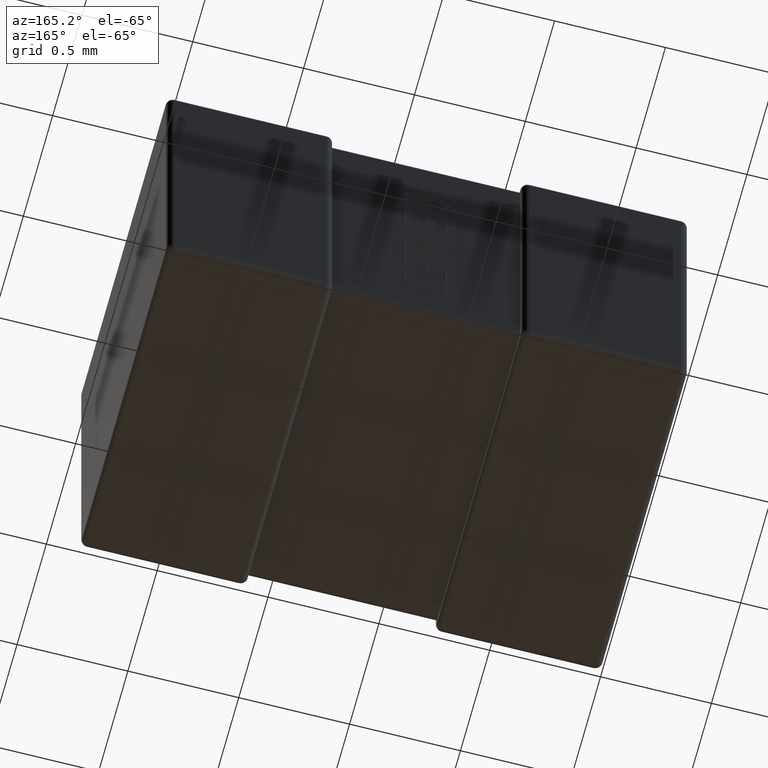
[diagram: clean part render]
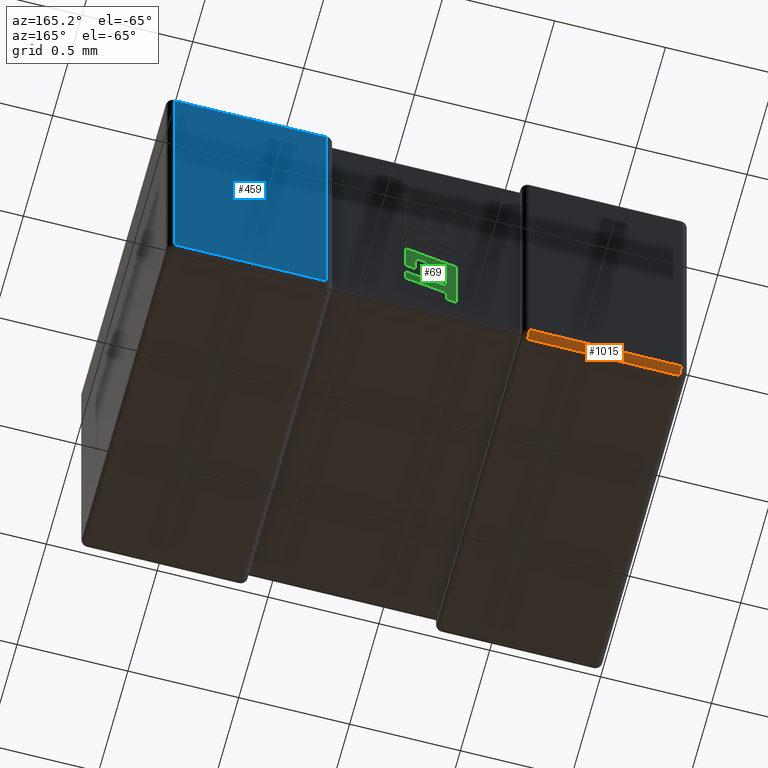
[diagram: same view with three faces highlighted in distinct colors, each labeled with its STEP entity id]
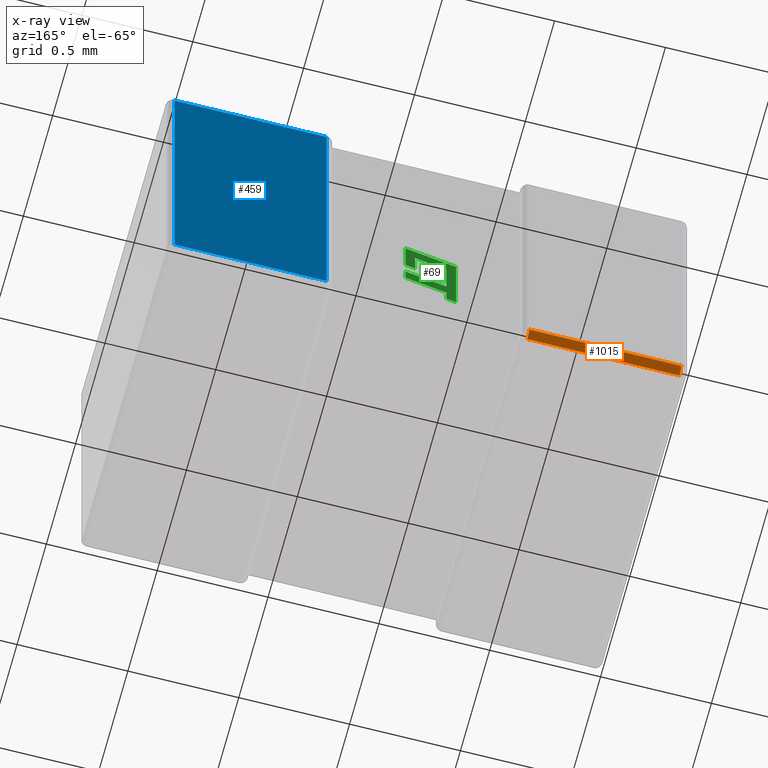
[diagram: x-ray of the same camera — body ghosted, the three highlighted faces saturated]
A machine part, auxiliary view with three faces highlighted in distinct colors.
The next image is the same camera in x-ray (body ghosted, the three faces saturated) — at least one of them is partly hidden behind the body in this view.
Their STEP definitions:

[orange] entity #1015 — the highlighted cylindrical surface (edge-blend (fillet) strip) has radius 0.0322 mm, axis along (-1, 0, 0).
#7 = EDGE_LOOP ( 'NONE', ( #2310, #2901, #1964, #3157 ) ) ;
#79 = DIRECTION ( 'NONE',  ( -1.000000000000000000, 0.000000000000000000, 0.000000000000000000 ) ) ;
#136 = CARTESIAN_POINT ( 'NONE',  ( 0.03223999999999978272, 1.467759999999999954, -1.550000000000000044 ) ) ;
#346 = EDGE_CURVE ( 'NONE', #2840, #2789, #3539, .T. ) ;
#517 = AXIS2_PLACEMENT_3D ( 'NONE', #1414, #4678, #2862 ) ;
#530 = CARTESIAN_POINT ( 'NONE',  ( 0.7177600000000000646, 1.467759999999999954, -1.517759999999999998 ) ) ;
#558 = FACE_OUTER_BOUND ( 'NONE', #7, .T. ) ;
#579 = EDGE_CURVE ( 'NONE', #3150, #3820, #1791, .T. ) ;
#605 = EDGE_CURVE ( 'NONE', #3820, #2789, #1310, .T. ) ;
#737 = VECTOR ( 'NONE', #79, 1000.000000000000000 ) ;
#834 = CARTESIAN_POINT ( 'NONE',  ( 2.350000000000000089, 1.500000000000000000, -1.517759999999999998 ) ) ;
#1015 = ADVANCED_FACE ( 'NONE', ( #558 ), #2079, .T. ) ;
#1213 = CARTESIAN_POINT ( 'NONE',  ( 0.7177600000000000646, 1.467759999999999954, -1.550000000000000044 ) ) ;
#1310 = LINE ( 'NONE', #834, #737 ) ;
#1334 = DIRECTION ( 'NONE',  ( 1.000000000000000000, -3.362909964285063307E-15, 0.000000000000000000 ) ) ;
#1414 = CARTESIAN_POINT ( 'NONE',  ( 0.03223999999999978272, 1.467759999999999954, -1.517759999999999998 ) ) ;
#1533 = EDGE_CURVE ( 'NONE', #2840, #3150, #3797, .T. ) ;
#1791 = CIRCLE ( 'NONE', #2038, 0.03224000000000000477 ) ;
#1964 = ORIENTED_EDGE ( 'NONE', *, *, #579, .F. ) ;
#1974 = DIRECTION ( 'NONE',  ( 3.362909964285062912E-15, 1.000000000000000000, 0.000000000000000000 ) ) ;
#2038 = AXIS2_PLACEMENT_3D ( 'NONE', #530, #1334, #1974 ) ;
#2079 = CYLINDRICAL_SURFACE ( 'NONE', #3307, 0.03224000000000000477 ) ;
#2271 = CARTESIAN_POINT ( 'NONE',  ( 0.03223999999999978272, 1.500000000000000000, -1.517759999999999998 ) ) ;
#2310 = ORIENTED_EDGE ( 'NONE', *, *, #346, .T. ) ;
#2645 = VECTOR ( 'NONE', #4404, 1000.000000000000000 ) ;
#2789 = VERTEX_POINT ( 'NONE', #2271 ) ;
#2840 = VERTEX_POINT ( 'NONE', #136 ) ;
#2862 = DIRECTION ( 'NONE',  ( 0.000000000000000000, 0.000000000000000000, 1.000000000000000000 ) ) ;
#2901 = ORIENTED_EDGE ( 'NONE', *, *, #605, .F. ) ;
#3150 = VERTEX_POINT ( 'NONE', #1213 ) ;
#3157 = ORIENTED_EDGE ( 'NONE', *, *, #1533, .F. ) ;
#3232 = DIRECTION ( 'NONE',  ( -1.000000000000000000, 0.000000000000000000, 0.000000000000000000 ) ) ;
#3307 = AXIS2_PLACEMENT_3D ( 'NONE', #3936, #3232, #3537 ) ;
#3510 = CARTESIAN_POINT ( 'NONE',  ( 0.7177600000000001756, 1.500000000000000000, -1.517759999999999998 ) ) ;
#3537 = DIRECTION ( 'NONE',  ( 0.000000000000000000, 0.000000000000000000, 1.000000000000000000 ) ) ;
#3539 = CIRCLE ( 'NONE', #517, 0.03224000000000000477 ) ;
#3797 = LINE ( 'NONE', #4511, #2645 ) ;
#3820 = VERTEX_POINT ( 'NONE', #3510 ) ;
#3936 = CARTESIAN_POINT ( 'NONE',  ( 2.350000000000000089, 1.467759999999999954, -1.517759999999999998 ) ) ;
#4404 = DIRECTION ( 'NONE',  ( 1.000000000000000000, -0.000000000000000000, -0.000000000000000000 ) ) ;
#4511 = CARTESIAN_POINT ( 'NONE',  ( 2.350000000000000089, 1.467759999999999954, -1.550000000000000044 ) ) ;
#4678 = DIRECTION ( 'NONE',  ( 1.000000000000000000, -0.000000000000000000, -0.000000000000000000 ) ) ;

[blue] entity #459 — the highlighted planar face has unit normal (0, -1, 0).
#19 = VECTOR ( 'NONE', #3088, 1000.000000000000000 ) ;
#134 = PLANE ( 'NONE',  #446 ) ;
#312 = ORIENTED_EDGE ( 'NONE', *, *, #4600, .T. ) ;
#446 = AXIS2_PLACEMENT_3D ( 'NONE', #3001, #795, #4006 ) ;
#456 = ORIENTED_EDGE ( 'NONE', *, *, #903, .T. ) ;
#459 = ADVANCED_FACE ( 'NONE', ( #2582 ), #134, .F. ) ;
#651 = CARTESIAN_POINT ( 'NONE',  ( 1.632240000000000135, 1.500000000000000000, -1.517759999999999998 ) ) ;
#795 = DIRECTION ( 'NONE',  ( 0.000000000000000000, -1.000000000000000000, 0.000000000000000000 ) ) ;
#894 = VECTOR ( 'NONE', #1007, 1000.000000000000000 ) ;
#903 = EDGE_CURVE ( 'NONE', #4239, #1529, #4555, .T. ) ;
#939 = ORIENTED_EDGE ( 'NONE', *, *, #2927, .T. ) ;
#1007 = DIRECTION ( 'NONE',  ( -0.000000000000000000, -0.000000000000000000, -1.000000000000000000 ) ) ;
#1075 = VERTEX_POINT ( 'NONE', #651 ) ;
#1130 = LINE ( 'NONE', #3690, #1422 ) ;
#1422 = VECTOR ( 'NONE', #2591, 1000.000000000000000 ) ;
#1529 = VERTEX_POINT ( 'NONE', #2972 ) ;
#1688 = DIRECTION ( 'NONE',  ( 1.000000000000000000, -0.000000000000000000, -0.000000000000000000 ) ) ;
#1741 = VECTOR ( 'NONE', #1688, 1000.000000000000000 ) ;
#1976 = CARTESIAN_POINT ( 'NONE',  ( 1.632240000000000135, 1.500000000000000000, -0.03223999999999999783 ) ) ;
#2027 = EDGE_CURVE ( 'NONE', #2819, #4239, #3087, .T. ) ;
#2366 = LINE ( 'NONE', #3533, #19 ) ;
#2582 = FACE_OUTER_BOUND ( 'NONE', #4169, .T. ) ;
#2591 = DIRECTION ( 'NONE',  ( -1.000000000000000000, 0.000000000000000000, 0.000000000000000000 ) ) ;
#2819 = VERTEX_POINT ( 'NONE', #1976 ) ;
#2854 = CARTESIAN_POINT ( 'NONE',  ( 2.317760000000000264, 1.500000000000000000, -0.03223999999999999783 ) ) ;
#2927 = EDGE_CURVE ( 'NONE', #1075, #2819, #2366, .T. ) ;
#2972 = CARTESIAN_POINT ( 'NONE',  ( 2.317760000000000264, 1.500000000000000000, -1.517759999999999998 ) ) ;
#3001 = CARTESIAN_POINT ( 'NONE',  ( 2.350000000000000089, 1.500000000000000000, 0.000000000000000000 ) ) ;
#3087 = LINE ( 'NONE', #4551, #1741 ) ;
#3088 = DIRECTION ( 'NONE',  ( -0.000000000000000000, 0.000000000000000000, 1.000000000000000000 ) ) ;
#3190 = ORIENTED_EDGE ( 'NONE', *, *, #2027, .T. ) ;
#3533 = CARTESIAN_POINT ( 'NONE',  ( 1.632240000000000135, 1.500000000000000000, 0.000000000000000000 ) ) ;
#3690 = CARTESIAN_POINT ( 'NONE',  ( 2.350000000000000089, 1.500000000000000000, -1.517759999999999998 ) ) ;
#4006 = DIRECTION ( 'NONE',  ( 0.000000000000000000, -0.000000000000000000, -1.000000000000000000 ) ) ;
#4166 = CARTESIAN_POINT ( 'NONE',  ( 2.317760000000000264, 1.500000000000000000, 0.000000000000000000 ) ) ;
#4169 = EDGE_LOOP ( 'NONE', ( #3190, #456, #312, #939 ) ) ;
#4239 = VERTEX_POINT ( 'NONE', #2854 ) ;
#4551 = CARTESIAN_POINT ( 'NONE',  ( 2.350000000000000089, 1.500000000000000000, -0.03223999999999999783 ) ) ;
#4555 = LINE ( 'NONE', #4166, #894 ) ;
#4600 = EDGE_CURVE ( 'NONE', #1529, #1075, #1130, .T. ) ;

[green] entity #69 — the highlighted planar face has unit normal (0, 1, 0).
#69 = ADVANCED_FACE ( 'NONE', ( #314 ), #334, .T. ) ;
#111 = CARTESIAN_POINT ( 'NONE',  ( 1.169014311898541880, 1.472760000000000069, -1.019298461156342261 ) ) ;
#121 = VERTEX_POINT ( 'NONE', #3006 ) ;
#147 = LINE ( 'NONE', #565, #2205 ) ;
#181 = DIRECTION ( 'NONE',  ( 7.938847109757214563E-05, 0.000000000000000000, -0.9999999968487351953 ) ) ;
#190 = ORIENTED_EDGE ( 'NONE', *, *, #3195, .T. ) ;
#202 = VECTOR ( 'NONE', #1547, 1000.000000000000000 ) ;
#215 = VECTOR ( 'NONE', #800, 1000.000000000000000 ) ;
#260 = CARTESIAN_POINT ( 'NONE',  ( 1.169014311898541880, 1.472760000000000069, -1.019298461156342261 ) ) ;
#270 = VERTEX_POINT ( 'NONE', #1368 ) ;
#272 = DIRECTION ( 'NONE',  ( 0.000000000000000000, 0.000000000000000000, -1.000000000000000000 ) ) ;
#293 = VECTOR ( 'NONE', #3678, 1000.000000000000000 ) ;
#314 = FACE_OUTER_BOUND ( 'NONE', #2267, .T. ) ;
#334 = PLANE ( 'NONE',  #2711 ) ;
#363 = DIRECTION ( 'NONE',  ( 0.000000000000000000, 0.000000000000000000, -1.000000000000000000 ) ) ;
#410 = LINE ( 'NONE', #2553, #4623 ) ;
#427 = DIRECTION ( 'NONE',  ( -0.9610992334305258344, 0.000000000000000000, -0.2762033010288897361 ) ) ;
#481 = CARTESIAN_POINT ( 'NONE',  ( 1.269000000000003681, 1.472760000000000069, -1.164480368551513267 ) ) ;
#492 = CARTESIAN_POINT ( 'NONE',  ( 1.225639842472818541, 1.472760000000000069, -1.003132803372474902 ) ) ;
#549 = EDGE_CURVE ( 'NONE', #2419, #4050, #2021, .T. ) ;
#565 = CARTESIAN_POINT ( 'NONE',  ( 1.085129846205633797, 1.472760000000000069, -1.217345090345971270 ) ) ;
#611 = CARTESIAN_POINT ( 'NONE',  ( 1.084807669329675317, 1.472760000000000069, -1.148070826337084016 ) ) ;
#661 = VERTEX_POINT ( 'NONE', #3015 ) ;
#765 = VERTEX_POINT ( 'NONE', #3713 ) ;
#778 = ORIENTED_EDGE ( 'NONE', *, *, #1302, .T. ) ;
#781 = EDGE_CURVE ( 'NONE', #2246, #976, #897, .T. ) ;
#800 = DIRECTION ( 'NONE',  ( -0.9620200793798762140, 0.000000000000000000, -0.2729786930695082825 ) ) ;
#880 = EDGE_CURVE ( 'NONE', #1004, #2593, #2767, .T. ) ;
#897 = LINE ( 'NONE', #3727, #215 ) ;
#937 = DIRECTION ( 'NONE',  ( -0.9615323037684311291, 0.000000000000000000, -0.2746918797667186607 ) ) ;
#945 = DIRECTION ( 'NONE',  ( -0.9610876102172832836, 0.000000000000000000, -0.2762437428917279836 ) ) ;
#976 = VERTEX_POINT ( 'NONE', #4217 ) ;
#1004 = VERTEX_POINT ( 'NONE', #1713 ) ;
#1057 = VECTOR ( 'NONE', #3558, 1000.000000000000000 ) ;
#1121 = LINE ( 'NONE', #1833, #4234 ) ;
#1142 = VECTOR ( 'NONE', #1162, 1000.000000000000114 ) ;
#1162 = DIRECTION ( 'NONE',  ( -0.9601763114346048011, 0.000000000000000000, -0.2793947940814874298 ) ) ;
#1186 = VERTEX_POINT ( 'NONE', #1498 ) ;
#1208 = EDGE_CURVE ( 'NONE', #4050, #2004, #3743, .T. ) ;
#1219 = CARTESIAN_POINT ( 'NONE',  ( 1.126897133544126905, 1.472760000000000069, -1.129104654719558010 ) ) ;
#1284 = ORIENTED_EDGE ( 'NONE', *, *, #781, .T. ) ;
#1285 = LINE ( 'NONE', #1633, #1785 ) ;
#1302 = EDGE_CURVE ( 'NONE', #4484, #2246, #2337, .T. ) ;
#1318 = CARTESIAN_POINT ( 'NONE',  ( 1.269000000000003681, 1.472760000000000069, -1.229391041238737214 ) ) ;
#1368 = CARTESIAN_POINT ( 'NONE',  ( 1.085134799085710311, 1.472760000000000069, -1.344628413949363610 ) ) ;
#1382 = ORIENTED_EDGE ( 'NONE', *, *, #2146, .T. ) ;
#1430 = VECTOR ( 'NONE', #937, 1000.000000000000227 ) ;
#1450 = CARTESIAN_POINT ( 'NONE',  ( 1.041132956314514857, 1.472760000000000069, -1.357273782712564048 ) ) ;
#1451 = DIRECTION ( 'NONE',  ( 0.9610348236706638403, 0.000000000000000000, 0.2764273280489756290 ) ) ;
#1452 = ORIENTED_EDGE ( 'NONE', *, *, #1208, .T. ) ;
#1498 = CARTESIAN_POINT ( 'NONE',  ( 1.225639842472818541, 1.472760000000000069, -1.003132803372474902 ) ) ;
#1538 = DIRECTION ( 'NONE',  ( -0.9615825319869173438, 0.000000000000000000, -0.2745159998572558879 ) ) ;
#1547 = DIRECTION ( 'NONE',  ( 0.000000000000000000, 0.000000000000000000, -1.000000000000000000 ) ) ;
#1605 = DIRECTION ( 'NONE',  ( 0.9610664548998939516, 0.000000000000000000, 0.2763173343569854667 ) ) ;
#1627 = CARTESIAN_POINT ( 'NONE',  ( 1.084807669329675317, 1.472760000000000069, -1.148070826337084016 ) ) ;
#1633 = CARTESIAN_POINT ( 'NONE',  ( 1.085129846206199566, 1.472760000000000069, -1.282240520256154648 ) ) ;
#1654 = DIRECTION ( 'NONE',  ( 0.004650693823668812857, 0.000000000000000000, -0.9999891854650021505 ) ) ;
#1692 = DIRECTION ( 'NONE',  ( 0.002813301676014988168, 0.000000000000000000, -0.9999960426590095430 ) ) ;
#1713 = CARTESIAN_POINT ( 'NONE',  ( 1.084513899447020258, 1.472760000000000069, -1.043649490149650694 ) ) ;
#1719 = ORIENTED_EDGE ( 'NONE', *, *, #2699, .T. ) ;
#1767 = ORIENTED_EDGE ( 'NONE', *, *, #2731, .T. ) ;
#1771 = DIRECTION ( 'NONE',  ( 0.000000000000000000, 1.000000000000000000, 0.000000000000000000 ) ) ;
#1777 = VECTOR ( 'NONE', #945, 1000.000000000000227 ) ;
#1785 = VECTOR ( 'NONE', #181, 1000.000000000000114 ) ;
#1833 = CARTESIAN_POINT ( 'NONE',  ( 1.225639842472818541, 1.472760000000000069, -1.110396224602928417 ) ) ;
#1846 = CARTESIAN_POINT ( 'NONE',  ( 1.269000000000003681, 1.472760000000000069, -1.164480368551513267 ) ) ;
#1870 = VECTOR ( 'NONE', #272, 1000.000000000000000 ) ;
#2004 = VERTEX_POINT ( 'NONE', #2435 ) ;
#2021 = LINE ( 'NONE', #2741, #1430 ) ;
#2060 = VECTOR ( 'NONE', #363, 1000.000000000000000 ) ;
#2089 = CARTESIAN_POINT ( 'NONE',  ( -0.2601923135456278291, 1.472759999999999625, 0.003507179810070972133 ) ) ;
#2146 = EDGE_CURVE ( 'NONE', #4384, #661, #3252, .T. ) ;
#2205 = VECTOR ( 'NONE', #1605, 1000.000000000000114 ) ;
#2213 = CARTESIAN_POINT ( 'NONE',  ( 1.041132956314514857, 1.472760000000000069, -1.357273782712564048 ) ) ;
#2219 = CARTESIAN_POINT ( 'NONE',  ( 1.126897133544126905, 1.472760000000000069, -1.129104654719558010 ) ) ;
#2246 = VERTEX_POINT ( 'NONE', #2855 ) ;
#2267 = EDGE_LOOP ( 'NONE', ( #3517, #1719, #2448, #3561, #3719, #3309, #3065, #1382, #3220, #778, #1284, #1767, #2479, #4568, #3676, #1452, #190 ) ) ;
#2323 = EDGE_CURVE ( 'NONE', #270, #4384, #3390, .T. ) ;
#2337 = LINE ( 'NONE', #2363, #1870 ) ;
#2363 = CARTESIAN_POINT ( 'NONE',  ( 1.269000000000003681, 1.472760000000000069, -0.9259322953616510032 ) ) ;
#2419 = VERTEX_POINT ( 'NONE', #3877 ) ;
#2420 = LINE ( 'NONE', #1318, #1777 ) ;
#2435 = CARTESIAN_POINT ( 'NONE',  ( 1.126897133544126905, 1.472760000000000069, -1.031316697909258950 ) ) ;
#2438 = VECTOR ( 'NONE', #1654, 1000.000000000000114 ) ;
#2448 = ORIENTED_EDGE ( 'NONE', *, *, #2641, .T. ) ;
#2479 = ORIENTED_EDGE ( 'NONE', *, *, #2530, .T. ) ;
#2530 = EDGE_CURVE ( 'NONE', #1186, #2760, #3645, .T. ) ;
#2553 = CARTESIAN_POINT ( 'NONE',  ( 1.041132956314514857, 1.472760000000000069, -0.9914748506207977652 ) ) ;
#2593 = VERTEX_POINT ( 'NONE', #611 ) ;
#2641 = EDGE_CURVE ( 'NONE', #3010, #2795, #147, .T. ) ;
#2699 = EDGE_CURVE ( 'NONE', #2593, #3010, #3428, .T. ) ;
#2711 = AXIS2_PLACEMENT_3D ( 'NONE', #2089, #1771, #4661 ) ;
#2731 = EDGE_CURVE ( 'NONE', #976, #1186, #1121, .T. ) ;
#2741 = CARTESIAN_POINT ( 'NONE',  ( 1.169014311898541880, 1.472760000000000069, -1.117072560896706479 ) ) ;
#2760 = VERTEX_POINT ( 'NONE', #260 ) ;
#2767 = LINE ( 'NONE', #2791, #2788 ) ;
#2788 = VECTOR ( 'NONE', #1692, 1000.000000000000114 ) ;
#2791 = CARTESIAN_POINT ( 'NONE',  ( 1.084513899447020258, 1.472760000000000069, -1.043649490149650694 ) ) ;
#2795 = VERTEX_POINT ( 'NONE', #481 ) ;
#2855 = CARTESIAN_POINT ( 'NONE',  ( 1.269000000000003681, 1.472760000000000069, -1.098092532209430150 ) ) ;
#2949 = CARTESIAN_POINT ( 'NONE',  ( 1.126897133544126905, 1.472760000000000069, -1.031316697909258950 ) ) ;
#2988 = EDGE_CURVE ( 'NONE', #2795, #765, #4336, .T. ) ;
#3006 = CARTESIAN_POINT ( 'NONE',  ( 1.085129846206199566, 1.472760000000000069, -1.282240520256154648 ) ) ;
#3010 = VERTEX_POINT ( 'NONE', #3652 ) ;
#3015 = CARTESIAN_POINT ( 'NONE',  ( 1.041132956314514857, 1.472760000000000069, -0.9914748506207977652 ) ) ;
#3043 = LINE ( 'NONE', #2949, #1142 ) ;
#3046 = EDGE_CURVE ( 'NONE', #661, #4484, #410, .T. ) ;
#3065 = ORIENTED_EDGE ( 'NONE', *, *, #2323, .T. ) ;
#3179 = CARTESIAN_POINT ( 'NONE',  ( 1.269000000000003681, 1.472760000000000069, -0.9259322953616510032 ) ) ;
#3195 = EDGE_CURVE ( 'NONE', #2004, #1004, #3043, .T. ) ;
#3220 = ORIENTED_EDGE ( 'NONE', *, *, #3046, .T. ) ;
#3252 = LINE ( 'NONE', #1450, #1057 ) ;
#3309 = ORIENTED_EDGE ( 'NONE', *, *, #4177, .T. ) ;
#3390 = LINE ( 'NONE', #3671, #3926 ) ;
#3428 = LINE ( 'NONE', #1627, #2438 ) ;
#3480 = VECTOR ( 'NONE', #1538, 1000.000000000000227 ) ;
#3503 = EDGE_CURVE ( 'NONE', #765, #121, #2420, .T. ) ;
#3517 = ORIENTED_EDGE ( 'NONE', *, *, #880, .T. ) ;
#3558 = DIRECTION ( 'NONE',  ( 0.000000000000000000, 0.000000000000000000, 1.000000000000000000 ) ) ;
#3561 = ORIENTED_EDGE ( 'NONE', *, *, #2988, .T. ) ;
#3645 = LINE ( 'NONE', #492, #3480 ) ;
#3652 = CARTESIAN_POINT ( 'NONE',  ( 1.085129846205633797, 1.472760000000000069, -1.217345090345971270 ) ) ;
#3671 = CARTESIAN_POINT ( 'NONE',  ( 1.085134799085710311, 1.472760000000000069, -1.344628413949363610 ) ) ;
#3676 = ORIENTED_EDGE ( 'NONE', *, *, #549, .T. ) ;
#3678 = DIRECTION ( 'NONE',  ( 0.000000000000000000, 0.000000000000000000, 1.000000000000000000 ) ) ;
#3713 = CARTESIAN_POINT ( 'NONE',  ( 1.269000000000003681, 1.472760000000000069, -1.229391041238737214 ) ) ;
#3719 = ORIENTED_EDGE ( 'NONE', *, *, #3503, .T. ) ;
#3727 = CARTESIAN_POINT ( 'NONE',  ( 1.269000000000003681, 1.472760000000000069, -1.098092532209430150 ) ) ;
#3743 = LINE ( 'NONE', #1219, #293 ) ;
#3877 = CARTESIAN_POINT ( 'NONE',  ( 1.169014311898541880, 1.472760000000000069, -1.117072560896706479 ) ) ;
#3926 = VECTOR ( 'NONE', #427, 1000.000000000000227 ) ;
#4003 = LINE ( 'NONE', #111, #202 ) ;
#4046 = EDGE_CURVE ( 'NONE', #2760, #2419, #4003, .T. ) ;
#4050 = VERTEX_POINT ( 'NONE', #2219 ) ;
#4177 = EDGE_CURVE ( 'NONE', #121, #270, #1285, .T. ) ;
#4217 = CARTESIAN_POINT ( 'NONE',  ( 1.225639842472818541, 1.472760000000000069, -1.110396224602928417 ) ) ;
#4234 = VECTOR ( 'NONE', #4271, 1000.000000000000000 ) ;
#4271 = DIRECTION ( 'NONE',  ( 0.000000000000000000, 0.000000000000000000, 1.000000000000000000 ) ) ;
#4336 = LINE ( 'NONE', #1846, #2060 ) ;
#4384 = VERTEX_POINT ( 'NONE', #2213 ) ;
#4484 = VERTEX_POINT ( 'NONE', #3179 ) ;
#4568 = ORIENTED_EDGE ( 'NONE', *, *, #4046, .T. ) ;
#4623 = VECTOR ( 'NONE', #1451, 1000.000000000000114 ) ;
#4661 = DIRECTION ( 'NONE',  ( 0.000000000000000000, 0.000000000000000000, 1.000000000000000000 ) ) ;